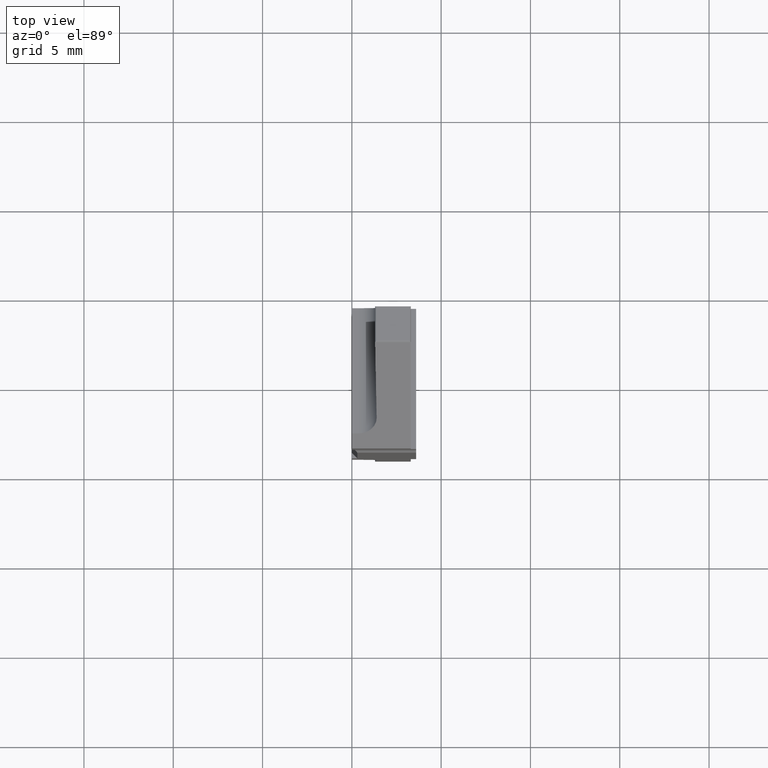
[diagram: clean part render]
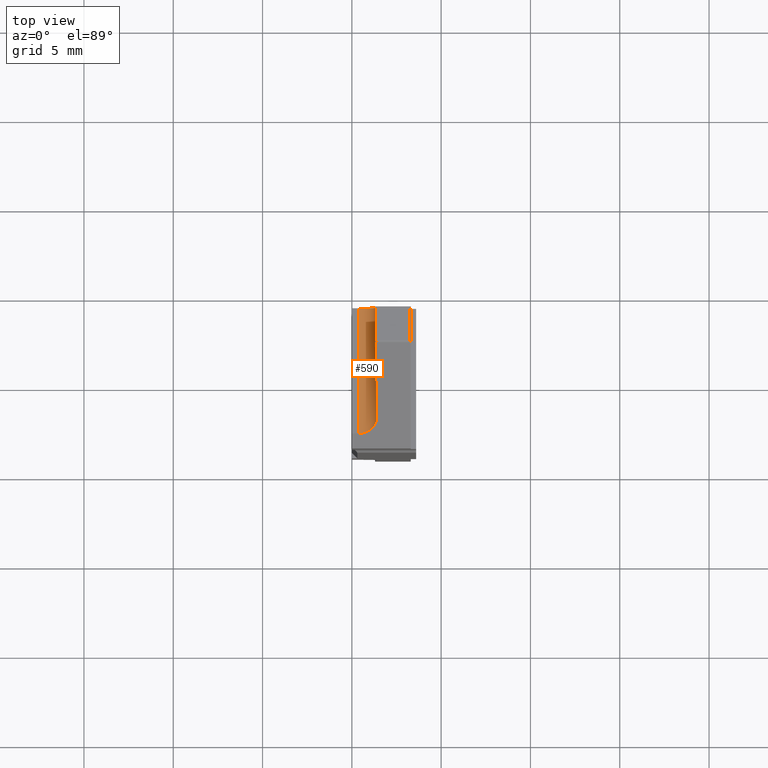
[diagram: same view with one face highlighted and labeled with its STEP entity id]
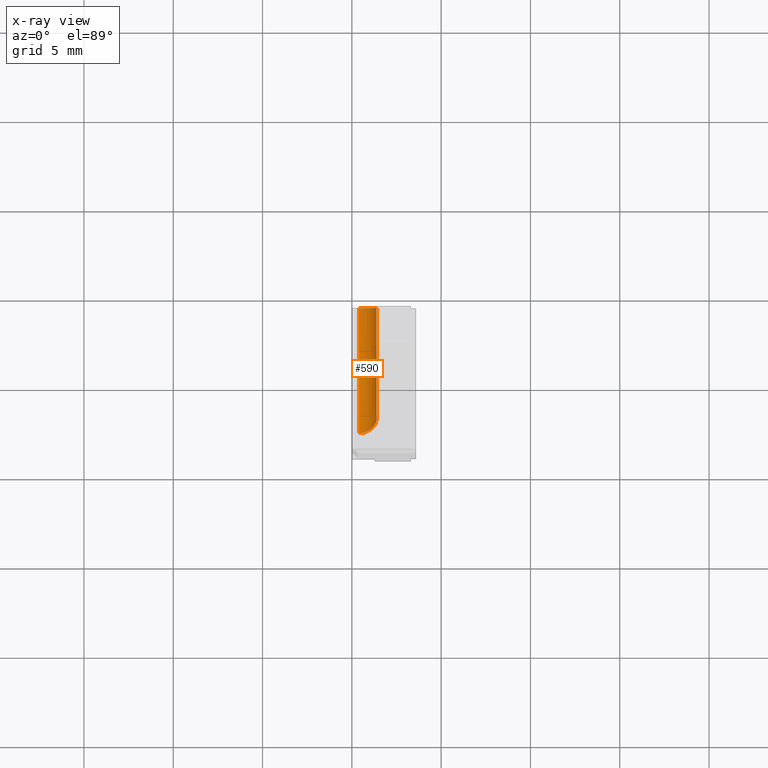
[diagram: x-ray of the same camera — body ghosted, the highlighted face saturated]
A machine part, top view. The second image highlights one B-rep face of the part: STEP entity #590.
The next image is the same camera in x-ray: the body ghosted, the highlighted face saturated — about 3% of this face is hidden behind the body in this view.
In plain terms, the highlighted cylindrical surface (edge-blend (fillet) strip) has radius 1 mm, axis along (0, 1, 0).
Its self-contained STEP definition (entity closure, byte-faithful):
#95 = ORIENTED_EDGE ( 'NONE', *, *, #984, .F. ) ;
#131 = VERTEX_POINT ( 'NONE', #1032 ) ;
#198 = DIRECTION ( 'NONE',  ( 0.0000000000000000000, 1.000000000000000000, 0.0000000000000000000 ) ) ;
#237 = VERTEX_POINT ( 'NONE', #836 ) ;
#297 = VERTEX_POINT ( 'NONE', #934 ) ;
#335 = DIRECTION ( 'NONE',  ( 0.0000000000000000000, -1.000000000000000000, 0.0000000000000000000 ) ) ;
#344 = CARTESIAN_POINT ( 'NONE',  ( 1.386970691753576900, -3.006177553973360600, 15.01745240643728800 ) ) ;
#411 = ORIENTED_EDGE ( 'NONE', *, *, #1381, .F. ) ;
#456 = DIRECTION ( 'NONE',  ( 0.0000000000000000000, 0.0000000000000000000, 1.000000000000000000 ) ) ;
#511 = CARTESIAN_POINT ( 'NONE',  ( 0.3871229965971857400, 4.000000000000000000, 15.00000000000000400 ) ) ;
#543 = ORIENTED_EDGE ( 'NONE', *, *, #1238, .F. ) ;
#544 = DIRECTION ( 'NONE',  ( -0.0000000000000000000, 1.000000000000000000, -0.0000000000000000000 ) ) ;
#554 = CARTESIAN_POINT ( 'NONE',  ( 0.3871229965971845200, 4.000000000000000000, 14.00000000000000400 ) ) ;
#590 = ADVANCED_FACE ( 'NONE', ( #924 ), #920, .F. ) ;
#655 = EDGE_CURVE ( 'NONE', #297, #237, #1170, .T. ) ;
#695 = ORIENTED_EDGE ( 'NONE', *, *, #655, .F. ) ;
#824 = EDGE_LOOP ( 'NONE', ( #95, #411, #543, #695 ) ) ;
#832 = CIRCLE ( 'NONE', #1164, 1.000000000000000900 ) ;
#836 = CARTESIAN_POINT ( 'NONE',  ( 1.386970691753576900, -2.152433614991401200, 15.01745240643729000 ) ) ;
#920 = CYLINDRICAL_SURFACE ( 'NONE', #1078, 1.000000000000000900 ) ;
#924 = FACE_OUTER_BOUND ( 'NONE', #824, .T. ) ;
#934 = CARTESIAN_POINT ( 'NONE',  ( 1.386970691753576900, 4.000000000000000000, 15.01745240643728800 ) ) ;
#964 = VERTEX_POINT ( 'NONE', #1214 ) ;
#984 = EDGE_CURVE ( 'NONE', #964, #297, #832, .T. ) ;
#1032 = CARTESIAN_POINT ( 'NONE',  ( 0.3871229965971845200, -3.006177553973359300, 14.00000000000000400 ) ) ;
#1078 = AXIS2_PLACEMENT_3D ( 'NONE', #511, #198, #456 ) ;
#1164 = AXIS2_PLACEMENT_3D ( 'NONE', #1365, #1361, #1277 ) ;
#1170 = LINE ( 'NONE', #344, #1180 ) ;
#1174 = VECTOR ( 'NONE', #544, 1000.000000000000000 ) ;
#1180 = VECTOR ( 'NONE', #335, 1000.000000000000000 ) ;
#1189 =( BOUNDED_CURVE ( )  B_SPLINE_CURVE ( 3, ( #1242, #1235, #1221, #1218 ),
 .UNSPECIFIED., .F., .T. ) 
 B_SPLINE_CURVE_WITH_KNOTS ( ( 4, 4 ),
 ( 1.553343034274952400, 3.141592653589794400 ),
 .UNSPECIFIED. ) 
 CURVE ( )  GEOMETRIC_REPRESENTATION_ITEM ( )  RATIONAL_B_SPLINE_CURVE ( ( 1.000000000000000000, 0.8006061761999001500, 0.8006061761999001500, 1.000000000000000000 ) ) 
 REPRESENTATION_ITEM ( '' )  );
#1214 = CARTESIAN_POINT ( 'NONE',  ( 0.3871229965971845200, 4.000000000000000000, 14.00000000000000400 ) ) ;
#1218 = CARTESIAN_POINT ( 'NONE',  ( 0.3871229965971845200, -3.006177553973359300, 14.00000000000000400 ) ) ;
#1221 = CARTESIAN_POINT ( 'NONE',  ( 0.9810483416314896800, -3.006177553973360600, 13.99999999999999800 ) ) ;
#1235 = CARTESIAN_POINT ( 'NONE',  ( 1.397336118268520200, -2.650720249928117900, 14.42361751910976900 ) ) ;
#1238 = EDGE_CURVE ( 'NONE', #237, #131, #1189, .T. ) ;
#1242 = CARTESIAN_POINT ( 'NONE',  ( 1.386970691753576900, -2.152433614991401200, 15.01745240643729000 ) ) ;
#1277 = DIRECTION ( 'NONE',  ( 0.0000000000000000000, 0.0000000000000000000, -1.000000000000000000 ) ) ;
#1361 = DIRECTION ( 'NONE',  ( 0.0000000000000000000, -1.000000000000000000, 0.0000000000000000000 ) ) ;
#1365 = CARTESIAN_POINT ( 'NONE',  ( 0.3871229965971857400, 4.000000000000000000, 15.00000000000000400 ) ) ;
#1381 = EDGE_CURVE ( 'NONE', #131, #964, #1390, .T. ) ;
#1390 = LINE ( 'NONE', #554, #1174 ) ;